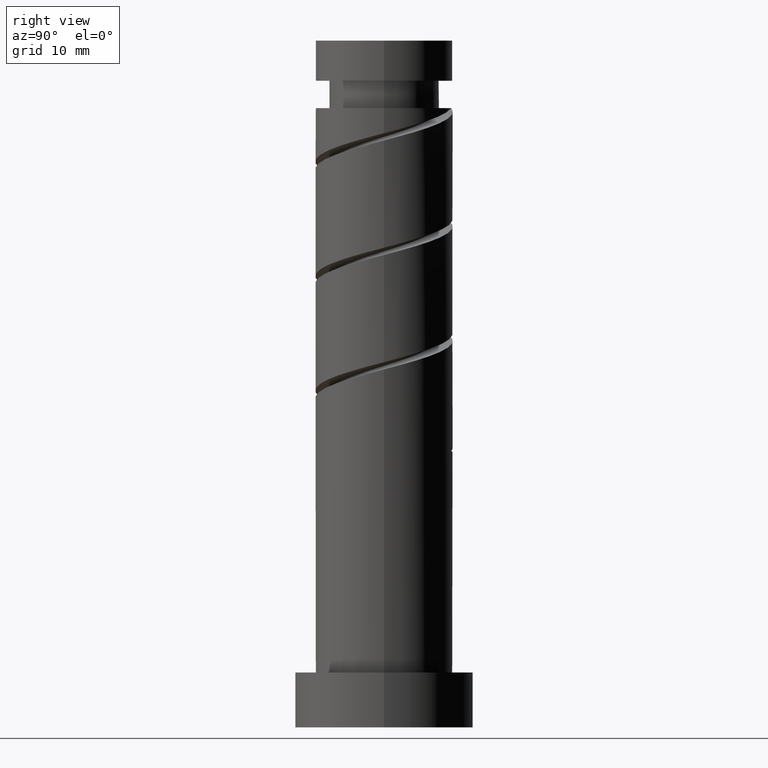
[diagram: clean part render]
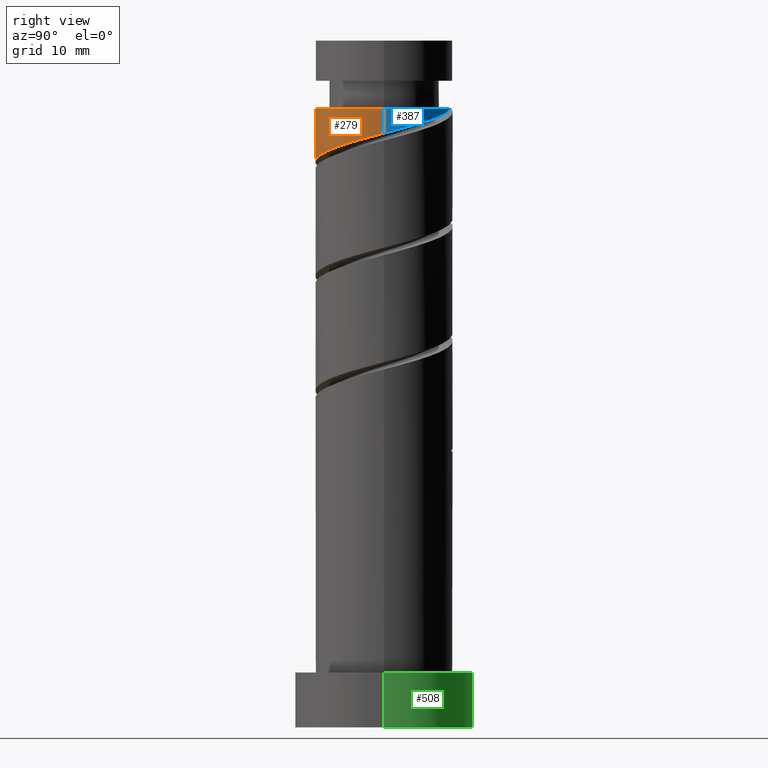
[diagram: same view with three faces highlighted in distinct colors, each labeled with its STEP entity id]
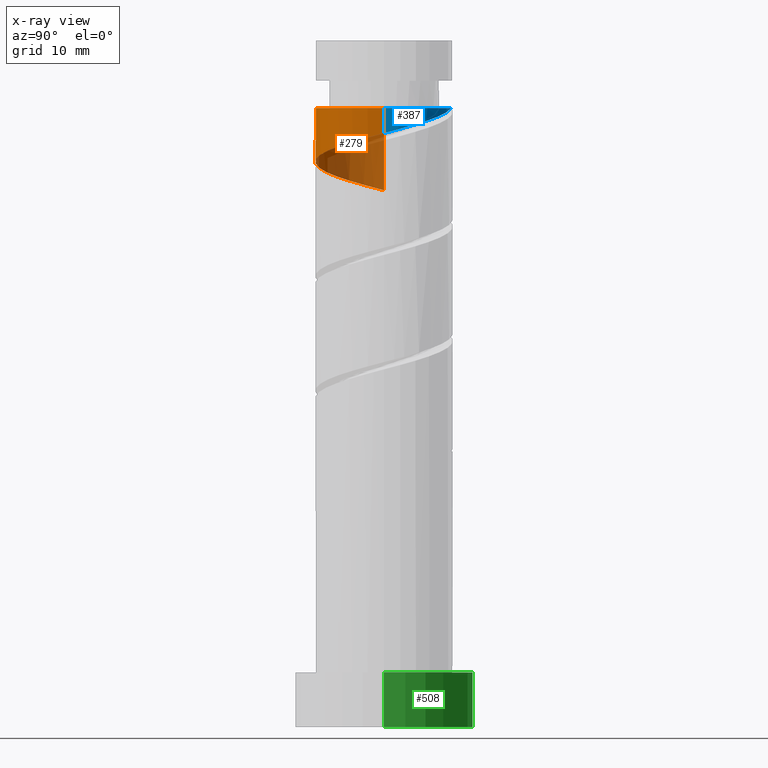
[diagram: x-ray of the same camera — body ghosted, the three highlighted faces saturated]
A machine part, right view with three faces highlighted in distinct colors.
The next image is the same camera in x-ray (body ghosted, the three faces saturated) — at least one of them is partly hidden behind the body in this view.
Their STEP definitions:

[orange] entity #279 — the highlighted cylindrical surface (partial cylindrical patch) has radius 10 mm, axis along (-0, -0, -1).
#14 = CARTESIAN_POINT ( 'NONE',  ( 10.00000000000000178, 1.224646799147353454E-15, 100.0000000000000000 ) ) ;
#26 = CARTESIAN_POINT ( 'NONE',  ( 7.492061519980877549, -6.623368793961414092, 84.60734175660266487 ) ) ;
#32 = DIRECTION ( 'NONE',  ( -0.000000000000000000, -0.000000000000000000, -1.000000000000000000 ) ) ;
#62 = DIRECTION ( 'NONE',  ( -0.000000000000000000, -0.000000000000000000, -1.000000000000000000 ) ) ;
#64 = VERTEX_POINT ( 'NONE', #248 ) ;
#70 = CARTESIAN_POINT ( 'NONE',  ( 0.000000000000000000, 0.000000000000000000, 100.0000000000000000 ) ) ;
#88 = AXIS2_PLACEMENT_3D ( 'NONE', #70, #62, #1206 ) ;
#129 = CARTESIAN_POINT ( 'NONE',  ( 10.00000000000000178, -0.1290167433202128178, 86.49306815988126118 ) ) ;
#155 = CARTESIAN_POINT ( 'NONE',  ( -9.482036394194121698, -3.176631206038588839, 79.05178620104709353 ) ) ;
#211 = EDGE_CURVE ( 'NONE', #1063, #219, #947, .T. ) ;
#215 = EDGE_CURVE ( 'NONE', #1209, #219, #519, .T. ) ;
#219 = VERTEX_POINT ( 'NONE', #1215 ) ;
#225 = CARTESIAN_POINT ( 'NONE',  ( 1.481832699744004334, -9.889599175394797825, 82.75548990475078881 ) ) ;
#233 = LINE ( 'NONE', #14, #334 ) ;
#248 = CARTESIAN_POINT ( 'NONE',  ( 10.00000000000000355, 1.224646799147353651E-15, 90.16289731215820780 ) ) ;
#251 = CARTESIAN_POINT ( 'NONE',  ( 8.659940141538760017, -5.302316206861115155, 85.07030471956561257 ) ) ;
#279 = ADVANCED_FACE ( 'NONE', ( #1096 ), #963, .T. ) ;
#316 = DIRECTION ( 'NONE',  ( -1.000000000000000000, 0.000000000000000000, 0.000000000000000000 ) ) ;
#334 = VECTOR ( 'NONE', #579, 1000.000000000000000 ) ;
#386 = ORIENTED_EDGE ( 'NONE', *, *, #625, .T. ) ;
#432 = CARTESIAN_POINT ( 'NONE',  ( 0.000000000000000000, 0.000000000000000000, 90.16289731215820780 ) ) ;
#490 = CARTESIAN_POINT ( 'NONE',  ( 3.225635862758292394, -9.628312089533865858, 83.21845286771376493 ) ) ;
#519 =( BOUNDED_CURVE ( )  B_SPLINE_CURVE ( 2, ( #1168, #129, #1054, #1410, #603, #251, #26, #1292, #711, #490, #225, #1080, #843, #747, #641, #873, #753, #854, #155, #1316, #1070 ),
 .UNSPECIFIED., .F., .T. ) 
 B_SPLINE_CURVE_WITH_KNOTS ( ( 3, 2, 2, 2, 2, 2, 2, 2, 2, 2, 3 ),
 ( 0.3045248053855290626, 0.3055555555555555802, 0.3194444444444444198, 0.3333333333333333148, 0.3472222222222222099, 0.3611111111111111049, 0.3750000000000000000, 0.3888888888888888951, 0.4027777777777777901, 0.4166666666666666852, 0.4295248053855290071 ),
 .UNSPECIFIED. ) 
 CURVE ( )  GEOMETRIC_REPRESENTATION_ITEM ( )  RATIONAL_B_SPLINE_CURVE ( ( 0.9071930855141203676, 0.9080659294509679791, 0.9090909090909080614, 0.8952797754656425244, 0.9090909090909080614, 0.8952797754656425244, 0.9090909090909080614, 0.8952797754656425244, 0.9090909090909080614, 0.8952797754656425244, 0.9090909090909080614, 0.8952797754656425244, 0.9090909090909080614, 0.8952797754656425244, 0.9090909090909080614, 0.8952797754656425244, 0.9090909090909080614, 0.8952797754656425244, 0.9090909090909080614, 0.8963047551055827178, 0.9071930855141201455 ) ) 
 REPRESENTATION_ITEM ( '' )  );
#579 = DIRECTION ( 'NONE',  ( -0.000000000000000000, -0.000000000000000000, -1.000000000000000000 ) ) ;
#603 = CARTESIAN_POINT ( 'NONE',  ( 9.305560469009531488, -3.661494825560610789, 85.53326768252858869 ) ) ;
#625 = EDGE_CURVE ( 'NONE', #64, #1063, #920, .T. ) ;
#641 = CARTESIAN_POINT ( 'NONE',  ( -5.221762109439104016, -8.528376192009007539, 80.90363805289894117 ) ) ;
#711 = CARTESIAN_POINT ( 'NONE',  ( 4.774909380590645291, -8.786366735297784558, 83.68141583067671263 ) ) ;
#724 = CARTESIAN_POINT ( 'NONE',  ( -10.00000000000000355, 0.000000000000000000, 90.16289731215820780 ) ) ;
#744 = EDGE_CURVE ( 'NONE', #64, #1209, #233, .T. ) ;
#747 = CARTESIAN_POINT ( 'NONE',  ( -3.717979285156202796, -9.449113738744276958, 81.36660101586191729 ) ) ;
#753 = CARTESIAN_POINT ( 'NONE',  ( -7.823727769265528487, -6.228104349834183040, 79.97771212697301735 ) ) ;
#842 = VECTOR ( 'NONE', #32, 1000.000000000000000 ) ;
#843 = CARTESIAN_POINT ( 'NONE',  ( -1.989974874213242373, -9.799999999999998934, 81.82956397882485078 ) ) ;
#854 = CARTESIAN_POINT ( 'NONE',  ( -8.921910604809045964, -4.848570054394622630, 79.51474916401006965 ) ) ;
#873 = CARTESIAN_POINT ( 'NONE',  ( -6.725544933722010121, -7.607638645273751443, 80.44067508993599347 ) ) ;
#920 = CIRCLE ( 'NONE', #1083, 10.00000000000000355 ) ;
#941 = CARTESIAN_POINT ( 'NONE',  ( 10.00000000000000355, 1.120422491017034895E-15, 86.52708553381361867 ) ) ;
#947 = LINE ( 'NONE', #1285, #842 ) ;
#951 = ORIENTED_EDGE ( 'NONE', *, *, #744, .F. ) ;
#963 = CYLINDRICAL_SURFACE ( 'NONE', #88, 10.00000000000000178 ) ;
#1054 = CARTESIAN_POINT ( 'NONE',  ( 9.996671490029745755, -0.2579905432887797390, 86.45919360845448409 ) ) ;
#1063 = VERTEX_POINT ( 'NONE', #724 ) ;
#1070 = CARTESIAN_POINT ( 'NONE',  ( -10.00000000000000355, -5.004553793209421968E-15, 78.19375220048030428 ) ) ;
#1080 = CARTESIAN_POINT ( 'NONE',  ( -0.2619704632702878344, -10.15088626125573157, 82.29252694178784111 ) ) ;
#1083 = AXIS2_PLACEMENT_3D ( 'NONE', #432, #1355, #316 ) ;
#1096 = FACE_OUTER_BOUND ( 'NONE', #1219, .T. ) ;
#1168 = CARTESIAN_POINT ( 'NONE',  ( 10.00000000000000355, 1.120422491017034698E-15, 86.52708553381361867 ) ) ;
#1206 = DIRECTION ( 'NONE',  ( -1.000000000000000000, 0.000000000000000000, 0.000000000000000000 ) ) ;
#1209 = VERTEX_POINT ( 'NONE', #941 ) ;
#1215 = CARTESIAN_POINT ( 'NONE',  ( -10.00000000000000355, -5.004553793209422757E-15, 78.19375220048030428 ) ) ;
#1219 = EDGE_LOOP ( 'NONE', ( #951, #386, #1338, #1247 ) ) ;
#1247 = ORIENTED_EDGE ( 'NONE', *, *, #215, .F. ) ;
#1285 = CARTESIAN_POINT ( 'NONE',  ( -10.00000000000000178, 0.000000000000000000, 100.0000000000000000 ) ) ;
#1292 = CARTESIAN_POINT ( 'NONE',  ( 6.324182898422996857, -7.944421381061714804, 84.14437879363967454 ) ) ;
#1316 = CARTESIAN_POINT ( 'NONE',  ( -9.999999999999998224, -1.630543718204573000, 78.62367171284591905 ) ) ;
#1338 = ORIENTED_EDGE ( 'NONE', *, *, #211, .T. ) ;
#1355 = DIRECTION ( 'NONE',  ( -0.000000000000000000, -0.000000000000000000, -1.000000000000000000 ) ) ;
#1410 = CARTESIAN_POINT ( 'NONE',  ( 9.951180796480308288, -2.020673444260115748, 85.99623064549153639 ) ) ;

[blue] entity #387 — the highlighted cylindrical surface (partial cylindrical patch) has radius 10 mm, axis along (-0, -0, -1).
#14 = CARTESIAN_POINT ( 'NONE',  ( 10.00000000000000178, 1.224646799147353454E-15, 100.0000000000000000 ) ) ;
#49 = CARTESIAN_POINT ( 'NONE',  ( 8.921910604809047740, 4.848570054394621742, 87.84808249734341246 ) ) ;
#64 = VERTEX_POINT ( 'NONE', #248 ) ;
#233 = LINE ( 'NONE', #14, #334 ) ;
#248 = CARTESIAN_POINT ( 'NONE',  ( 10.00000000000000355, 1.224646799147353651E-15, 90.16289731215820780 ) ) ;
#308 = ORIENTED_EDGE ( 'NONE', *, *, #542, .T. ) ;
#334 = VECTOR ( 'NONE', #579, 1000.000000000000000 ) ;
#387 = ADVANCED_FACE ( 'NONE', ( #621 ), #1105, .T. ) ;
#388 = CARTESIAN_POINT ( 'NONE',  ( 9.482036394194121698, 3.176631206038592392, 87.38511953438040791 ) ) ;
#405 = EDGE_LOOP ( 'NONE', ( #308, #1110, #983 ) ) ;
#420 = CARTESIAN_POINT ( 'NONE',  ( 5.221762109439108457, 8.528376192009005763, 89.23697138623229819 ) ) ;
#542 = EDGE_CURVE ( 'NONE', #884, #64, #714, .T. ) ;
#579 = DIRECTION ( 'NONE',  ( -0.000000000000000000, -0.000000000000000000, -1.000000000000000000 ) ) ;
#612 = DIRECTION ( 'NONE',  ( -0.000000000000000000, -0.000000000000000000, -1.000000000000000000 ) ) ;
#621 = FACE_OUTER_BOUND ( 'NONE', #405, .T. ) ;
#652 =( BOUNDED_CURVE ( )  B_SPLINE_CURVE ( 2, ( #1455, #1420, #420, #882, #1319, #49, #388, #1427, #1081 ),
 .UNSPECIFIED., .F., .T. ) 
 B_SPLINE_CURVE_WITH_KNOTS ( ( 3, 2, 2, 2, 3 ),
 ( 0.2500000000000002220, 0.2638888888888890616, 0.2777777777777779011, 0.2916666666666667407, 0.3045248053855290626 ),
 .UNSPECIFIED. ) 
 CURVE ( )  GEOMETRIC_REPRESENTATION_ITEM ( )  RATIONAL_B_SPLINE_CURVE ( ( 0.9090909090909078394, 0.8952797754656427465, 0.9090909090909080614, 0.8952797754656425244, 0.9090909090909080614, 0.8952797754656425244, 0.9090909090909080614, 0.8963047551055826068, 0.9071930855141203676 ) ) 
 REPRESENTATION_ITEM ( '' )  );
#714 = CIRCLE ( 'NONE', #1277, 10.00000000000000355 ) ;
#735 = DIRECTION ( 'NONE',  ( -1.000000000000000000, 0.000000000000000000, 0.000000000000000000 ) ) ;
#744 = EDGE_CURVE ( 'NONE', #64, #1209, #233, .T. ) ;
#882 = CARTESIAN_POINT ( 'NONE',  ( 6.725544933722014562, 7.607638645273746114, 88.77400842326933628 ) ) ;
#884 = VERTEX_POINT ( 'NONE', #1430 ) ;
#941 = CARTESIAN_POINT ( 'NONE',  ( 10.00000000000000355, 1.120422491017034895E-15, 86.52708553381361867 ) ) ;
#970 = CARTESIAN_POINT ( 'NONE',  ( 0.000000000000000000, 0.000000000000000000, 100.0000000000000000 ) ) ;
#983 = ORIENTED_EDGE ( 'NONE', *, *, #1357, .F. ) ;
#1009 = DIRECTION ( 'NONE',  ( -1.000000000000000000, 0.000000000000000000, 0.000000000000000000 ) ) ;
#1081 = CARTESIAN_POINT ( 'NONE',  ( 10.00000000000000355, 1.120422491017034698E-15, 86.52708553381361867 ) ) ;
#1105 = CYLINDRICAL_SURFACE ( 'NONE', #1175, 10.00000000000000178 ) ;
#1110 = ORIENTED_EDGE ( 'NONE', *, *, #744, .T. ) ;
#1175 = AXIS2_PLACEMENT_3D ( 'NONE', #970, #612, #735 ) ;
#1209 = VERTEX_POINT ( 'NONE', #941 ) ;
#1253 = CARTESIAN_POINT ( 'NONE',  ( 0.000000000000000000, 0.000000000000000000, 90.16289731215820780 ) ) ;
#1277 = AXIS2_PLACEMENT_3D ( 'NONE', #1253, #1474, #1009 ) ;
#1319 = CARTESIAN_POINT ( 'NONE',  ( 7.823727769265528487, 6.228104349834182152, 88.31104546030634594 ) ) ;
#1357 = EDGE_CURVE ( 'NONE', #884, #1209, #652, .T. ) ;
#1420 = CARTESIAN_POINT ( 'NONE',  ( 3.717979285156223668, 9.449113738744260971, 89.69993434919521746 ) ) ;
#1427 = CARTESIAN_POINT ( 'NONE',  ( 10.00000000000000355, 1.630543718204561232, 86.95700504617924764 ) ) ;
#1430 = CARTESIAN_POINT ( 'NONE',  ( 1.989974874213243705, 9.800000000000000711, 90.16289731215817937 ) ) ;
#1455 = CARTESIAN_POINT ( 'NONE',  ( 1.989974874213243705, 9.800000000000000711, 90.16289731215817937 ) ) ;
#1474 = DIRECTION ( 'NONE',  ( -0.000000000000000000, -0.000000000000000000, -1.000000000000000000 ) ) ;

[green] entity #508 — the highlighted cylindrical surface (partial cylindrical patch) has radius 13 mm, axis along (-0, -0, -1).
#66 = VERTEX_POINT ( 'NONE', #256 ) ;
#91 = CYLINDRICAL_SURFACE ( 'NONE', #1251, 13.00000000000000178 ) ;
#121 = CARTESIAN_POINT ( 'NONE',  ( 0.000000000000000000, 0.000000000000000000, 0.000000000000000000 ) ) ;
#247 = DIRECTION ( 'NONE',  ( 1.000000000000000000, 0.000000000000000000, 0.000000000000000000 ) ) ;
#255 = CARTESIAN_POINT ( 'NONE',  ( -13.00000000000000178, 0.000000000000000000, 8.000000000000000000 ) ) ;
#256 = CARTESIAN_POINT ( 'NONE',  ( -13.00000000000000178, 0.000000000000000000, 0.000000000000000000 ) ) ;
#274 = CARTESIAN_POINT ( 'NONE',  ( 13.00000000000000178, 1.592040838891559293E-15, 8.000000000000000000 ) ) ;
#281 = CARTESIAN_POINT ( 'NONE',  ( 13.00000000000000178, 1.592040838891559293E-15, 0.000000000000000000 ) ) ;
#325 = FACE_OUTER_BOUND ( 'NONE', #430, .T. ) ;
#344 = EDGE_CURVE ( 'NONE', #1093, #1432, #503, .T. ) ;
#399 = ORIENTED_EDGE ( 'NONE', *, *, #344, .T. ) ;
#419 = DIRECTION ( 'NONE',  ( -0.000000000000000000, -0.000000000000000000, -1.000000000000000000 ) ) ;
#430 = EDGE_LOOP ( 'NONE', ( #1330, #399, #646, #1263 ) ) ;
#456 = CIRCLE ( 'NONE', #673, 13.00000000000000178 ) ;
#503 = LINE ( 'NONE', #720, #1352 ) ;
#508 = ADVANCED_FACE ( 'NONE', ( #325 ), #91, .T. ) ;
#645 = DIRECTION ( 'NONE',  ( 0.000000000000000000, 0.000000000000000000, 1.000000000000000000 ) ) ;
#646 = ORIENTED_EDGE ( 'NONE', *, *, #739, .T. ) ;
#673 = AXIS2_PLACEMENT_3D ( 'NONE', #121, #1274, #247 ) ;
#720 = CARTESIAN_POINT ( 'NONE',  ( 13.00000000000000178, 1.592040838891559293E-15, 8.000000000000000000 ) ) ;
#739 = EDGE_CURVE ( 'NONE', #1432, #66, #456, .T. ) ;
#749 = CARTESIAN_POINT ( 'NONE',  ( 0.000000000000000000, 0.000000000000000000, 8.000000000000000000 ) ) ;
#808 = VECTOR ( 'NONE', #1311, 1000.000000000000000 ) ;
#869 = CIRCLE ( 'NONE', #1376, 13.00000000000000178 ) ;
#887 = EDGE_CURVE ( 'NONE', #1034, #66, #1075, .T. ) ;
#1034 = VERTEX_POINT ( 'NONE', #1303 ) ;
#1075 = LINE ( 'NONE', #255, #808 ) ;
#1093 = VERTEX_POINT ( 'NONE', #274 ) ;
#1100 = DIRECTION ( 'NONE',  ( 1.000000000000000000, 0.000000000000000000, 0.000000000000000000 ) ) ;
#1135 = CARTESIAN_POINT ( 'NONE',  ( 0.000000000000000000, 0.000000000000000000, 8.000000000000000000 ) ) ;
#1167 = EDGE_CURVE ( 'NONE', #1093, #1034, #869, .T. ) ;
#1251 = AXIS2_PLACEMENT_3D ( 'NONE', #1135, #419, #1358 ) ;
#1263 = ORIENTED_EDGE ( 'NONE', *, *, #887, .F. ) ;
#1274 = DIRECTION ( 'NONE',  ( 0.000000000000000000, 0.000000000000000000, 1.000000000000000000 ) ) ;
#1303 = CARTESIAN_POINT ( 'NONE',  ( -13.00000000000000178, 0.000000000000000000, 8.000000000000000000 ) ) ;
#1311 = DIRECTION ( 'NONE',  ( -0.000000000000000000, -0.000000000000000000, -1.000000000000000000 ) ) ;
#1330 = ORIENTED_EDGE ( 'NONE', *, *, #1167, .F. ) ;
#1352 = VECTOR ( 'NONE', #1443, 1000.000000000000000 ) ;
#1358 = DIRECTION ( 'NONE',  ( -1.000000000000000000, 0.000000000000000000, 0.000000000000000000 ) ) ;
#1376 = AXIS2_PLACEMENT_3D ( 'NONE', #749, #645, #1100 ) ;
#1432 = VERTEX_POINT ( 'NONE', #281 ) ;
#1443 = DIRECTION ( 'NONE',  ( -0.000000000000000000, -0.000000000000000000, -1.000000000000000000 ) ) ;